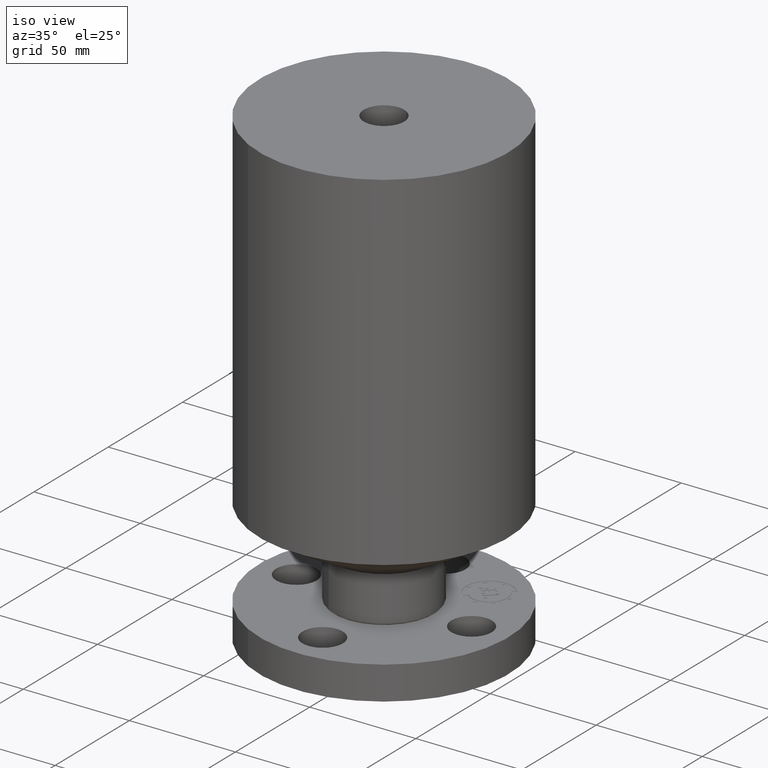
[diagram: clean part render]
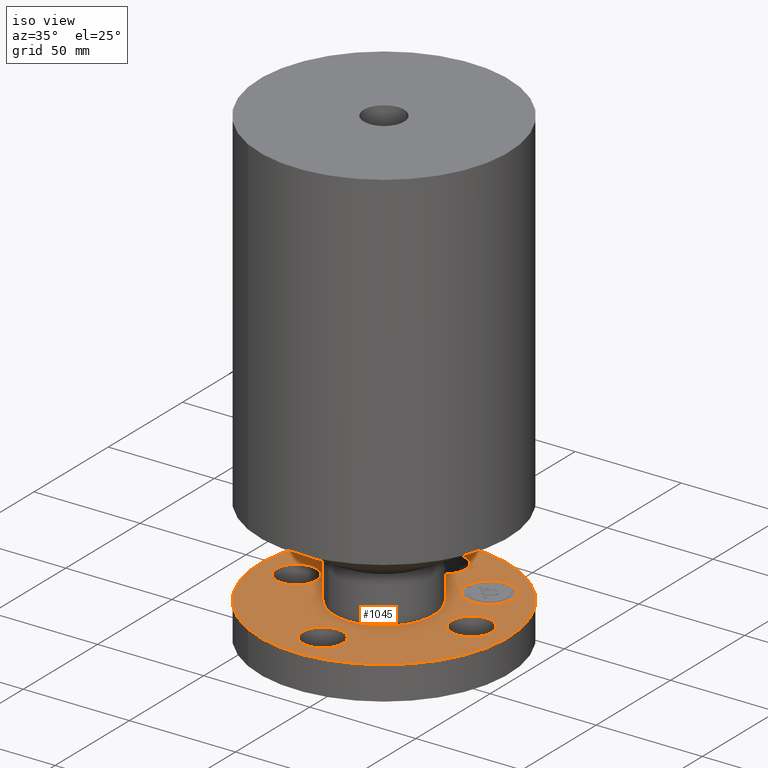
[diagram: same view with one face highlighted and labeled with its STEP entity id]
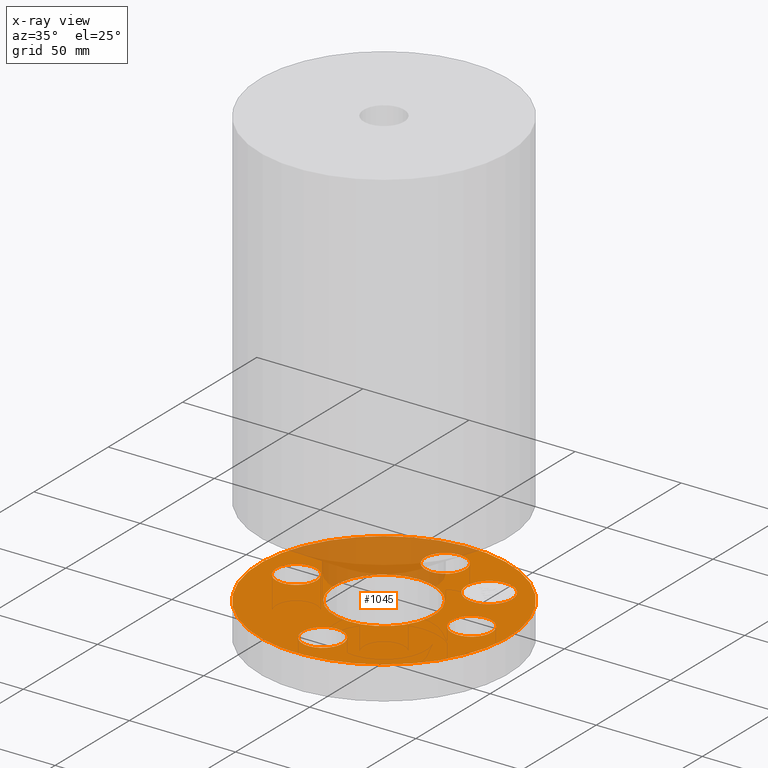
[diagram: x-ray of the same camera — body ghosted, the highlighted face saturated]
A machine part, iso view. The second image highlights one B-rep face of the part: STEP entity #1045.
The next image is the same camera in x-ray: the body ghosted, the highlighted face saturated — about 24% of this face is hidden behind the body in this view.
In plain terms, the highlighted planar face has unit normal (0, 0, -1).
Its self-contained STEP definition (entity closure, byte-faithful):
#65=AXIS2_PLACEMENT_3D('Circle Axis2P3D',#63,#64,$) ;
#250=AXIS2_PLACEMENT_3D('Circle Axis2P3D',#248,#249,$) ;
#269=AXIS2_PLACEMENT_3D('Circle Axis2P3D',#267,#268,$) ;
#286=AXIS2_PLACEMENT_3D('Circle Axis2P3D',#284,#285,$) ;
#321=AXIS2_PLACEMENT_3D('Circle Axis2P3D',#319,#320,$) ;
#855=AXIS2_PLACEMENT_3D('Circle Axis2P3D',#853,#854,$) ;
#887=AXIS2_PLACEMENT_3D('Circle Axis2P3D',#885,#886,$) ;
#899=AXIS2_PLACEMENT_3D('Circle Axis2P3D',#897,#898,$) ;
#931=AXIS2_PLACEMENT_3D('Circle Axis2P3D',#929,#930,$) ;
#943=AXIS2_PLACEMENT_3D('Circle Axis2P3D',#941,#942,$) ;
#975=AXIS2_PLACEMENT_3D('Circle Axis2P3D',#973,#974,$) ;
#987=AXIS2_PLACEMENT_3D('Circle Axis2P3D',#985,#986,$) ;
#1001=AXIS2_PLACEMENT_3D('Plane Axis2P3D',#998,#999,#1000) ;
#1029=AXIS2_PLACEMENT_3D('Circle Axis2P3D',#1027,#1028,$) ;
#1038=AXIS2_PLACEMENT_3D('Circle Axis2P3D',#1036,#1037,$) ;
#44=CARTESIAN_POINT('Vertex',(1.95409346072,0.179784576977,0.620000000002)) ;
#60=CARTESIAN_POINT('Vertex',(1.2959065393,-0.179784576977,0.620000000002)) ;
#63=CARTESIAN_POINT('Axis2P3D Location',(1.62500000001,0.,0.620000000002)) ;
#245=CARTESIAN_POINT('Vertex',(-1.10747299418,-2.02721571797,0.620000000002)) ;
#248=CARTESIAN_POINT('Axis2P3D Location',(0.,0.,0.620000000002)) ;
#252=CARTESIAN_POINT('Vertex',(1.10747299418,2.02721571797,0.620000000002)) ;
#267=CARTESIAN_POINT('Axis2P3D Location',(0.,0.,0.620000000002)) ;
#284=CARTESIAN_POINT('Axis2P3D Location',(0.,0.,0.620000000002)) ;
#288=CARTESIAN_POINT('Vertex',(0.443468623211,0.811763869752,0.620000000002)) ;
#290=CARTESIAN_POINT('Vertex',(-0.443468623211,-0.811763869752,0.620000000002)) ;
#319=CARTESIAN_POINT('Axis2P3D Location',(0.,0.,0.620000000002)) ;
#853=CARTESIAN_POINT('Axis2P3D Location',(1.62500000001,0.,0.620000000002)) ;
#875=CARTESIAN_POINT('Vertex',(0.179784576977,-1.95409346072,0.620000000002)) ;
#882=CARTESIAN_POINT('Vertex',(-0.179784576977,-1.2959065393,0.620000000002)) ;
#885=CARTESIAN_POINT('Axis2P3D Location',(-1.8023868212E-016,-1.62500000001,0.620000000002)) ;
#897=CARTESIAN_POINT('Axis2P3D Location',(-1.8023868212E-016,-1.62500000001,0.620000000002)) ;
#919=CARTESIAN_POINT('Vertex',(-1.95409346072,-0.179784576977,0.620000000002)) ;
#926=CARTESIAN_POINT('Vertex',(-1.2959065393,0.179784576977,0.620000000002)) ;
#929=CARTESIAN_POINT('Axis2P3D Location',(-1.62500000001,-1.99005104862E-016,0.620000000002)) ;
#941=CARTESIAN_POINT('Axis2P3D Location',(-1.62500000001,-1.99005104862E-016,0.620000000002)) ;
#963=CARTESIAN_POINT('Vertex',(-0.179784576977,1.95409346072,0.620000000002)) ;
#970=CARTESIAN_POINT('Vertex',(0.179784576977,1.2959065393,0.620000000002)) ;
#973=CARTESIAN_POINT('Axis2P3D Location',(-2.98507657293E-016,1.62500000001,0.620000000002)) ;
#985=CARTESIAN_POINT('Axis2P3D Location',(-2.98507657293E-016,1.62500000001,0.620000000002)) ;
#998=CARTESIAN_POINT('Axis2P3D Location',(0.,2.31000000001,0.620000000002)) ;
#1027=CARTESIAN_POINT('Axis2P3D Location',(1.14904851943,1.14904851943,0.620000000002)) ;
#1031=CARTESIAN_POINT('Vertex',(1.44956889843,0.848528140432,0.620000000002)) ;
#1033=CARTESIAN_POINT('Vertex',(0.848528140432,1.44956889843,0.620000000002)) ;
#1036=CARTESIAN_POINT('Axis2P3D Location',(1.14904851943,1.14904851943,0.620000000002)) ;
#64=DIRECTION('Axis2P3D Direction',(0.,-0.,0.0393700787402)) ;
#249=DIRECTION('Axis2P3D Direction',(0.,0.,-0.0393700787402)) ;
#268=DIRECTION('Axis2P3D Direction',(0.,0.,-0.0393700787402)) ;
#285=DIRECTION('Axis2P3D Direction',(0.,0.,-0.0393700787402)) ;
#320=DIRECTION('Axis2P3D Direction',(0.,0.,-0.0393700787402)) ;
#854=DIRECTION('Axis2P3D Direction',(0.,-0.,0.0393700787402)) ;
#886=DIRECTION('Axis2P3D Direction',(-0.,0.,0.0393700787402)) ;
#898=DIRECTION('Axis2P3D Direction',(-0.,0.,0.0393700787402)) ;
#930=DIRECTION('Axis2P3D Direction',(0.,0.,0.0393700787402)) ;
#942=DIRECTION('Axis2P3D Direction',(0.,0.,0.0393700787402)) ;
#974=DIRECTION('Axis2P3D Direction',(0.,0.,0.0393700787402)) ;
#986=DIRECTION('Axis2P3D Direction',(0.,0.,0.0393700787402)) ;
#999=DIRECTION('Axis2P3D Direction',(0.,0.,-0.0393700787402)) ;
#1000=DIRECTION('Axis2P3D XDirection',(0.0393700787402,0.,0.)) ;
#1028=DIRECTION('Axis2P3D Direction',(0.,0.,-0.0393700787402)) ;
#1037=DIRECTION('Axis2P3D Direction',(0.,0.,-0.0393700787402)) ;
#1004=ORIENTED_EDGE('',*,*,#271,.F.) ;
#1005=ORIENTED_EDGE('',*,*,#254,.F.) ;
#1008=ORIENTED_EDGE('',*,*,#67,.T.) ;
#1009=ORIENTED_EDGE('',*,*,#857,.T.) ;
#1012=ORIENTED_EDGE('',*,*,#323,.T.) ;
#1013=ORIENTED_EDGE('',*,*,#292,.T.) ;
#1016=ORIENTED_EDGE('',*,*,#901,.T.) ;
#1017=ORIENTED_EDGE('',*,*,#889,.T.) ;
#1020=ORIENTED_EDGE('',*,*,#945,.T.) ;
#1021=ORIENTED_EDGE('',*,*,#933,.T.) ;
#1024=ORIENTED_EDGE('',*,*,#989,.T.) ;
#1025=ORIENTED_EDGE('',*,*,#977,.T.) ;
#1042=ORIENTED_EDGE('',*,*,#1035,.F.) ;
#1043=ORIENTED_EDGE('',*,*,#1040,.F.) ;
#1010=FACE_BOUND('',#1007,.T.) ;
#1014=FACE_BOUND('',#1011,.T.) ;
#1018=FACE_BOUND('',#1015,.T.) ;
#1022=FACE_BOUND('',#1019,.T.) ;
#1026=FACE_BOUND('',#1023,.T.) ;
#1044=FACE_BOUND('',#1041,.T.) ;
#1045=ADVANCED_FACE('PartBody',(#1006,#1010,#1014,#1018,#1022,#1026,#1044),#1002,.F.) ;
#66=CIRCLE('generated circle',#65,0.375000000001) ;
#251=CIRCLE('generated circle',#250,2.31000000001) ;
#270=CIRCLE('generated circle',#269,2.31000000001) ;
#287=CIRCLE('generated circle',#286,0.925000000004) ;
#322=CIRCLE('generated circle',#321,0.925000000004) ;
#856=CIRCLE('generated circle',#855,0.375000000001) ;
#888=CIRCLE('generated circle',#887,0.375000000001) ;
#900=CIRCLE('generated circle',#899,0.375000000001) ;
#932=CIRCLE('generated circle',#931,0.375000000002) ;
#944=CIRCLE('generated circle',#943,0.375000000002) ;
#976=CIRCLE('generated circle',#975,0.375000000001) ;
#988=CIRCLE('generated circle',#987,0.375000000001) ;
#1030=CIRCLE('generated circle',#1029,0.424999995752) ;
#1039=CIRCLE('generated circle',#1038,0.424999995752) ;
#67=EDGE_CURVE('',#45,#61,#66,.F.) ;
#254=EDGE_CURVE('',#246,#253,#251,.T.) ;
#271=EDGE_CURVE('',#253,#246,#270,.T.) ;
#292=EDGE_CURVE('',#289,#291,#287,.T.) ;
#323=EDGE_CURVE('',#291,#289,#322,.T.) ;
#857=EDGE_CURVE('',#61,#45,#856,.F.) ;
#889=EDGE_CURVE('',#876,#883,#888,.F.) ;
#901=EDGE_CURVE('',#883,#876,#900,.F.) ;
#933=EDGE_CURVE('',#920,#927,#932,.F.) ;
#945=EDGE_CURVE('',#927,#920,#944,.F.) ;
#977=EDGE_CURVE('',#964,#971,#976,.F.) ;
#989=EDGE_CURVE('',#971,#964,#988,.F.) ;
#1035=EDGE_CURVE('',#1032,#1034,#1030,.F.) ;
#1040=EDGE_CURVE('',#1034,#1032,#1039,.F.) ;
#1003=EDGE_LOOP('',(#1004,#1005)) ;
#1007=EDGE_LOOP('',(#1008,#1009)) ;
#1011=EDGE_LOOP('',(#1012,#1013)) ;
#1015=EDGE_LOOP('',(#1016,#1017)) ;
#1019=EDGE_LOOP('',(#1020,#1021)) ;
#1023=EDGE_LOOP('',(#1024,#1025)) ;
#1041=EDGE_LOOP('',(#1042,#1043)) ;
#1006=FACE_OUTER_BOUND('',#1003,.T.) ;
#1002=PLANE('',#1001) ;
#45=VERTEX_POINT('',#44) ;
#61=VERTEX_POINT('',#60) ;
#246=VERTEX_POINT('',#245) ;
#253=VERTEX_POINT('',#252) ;
#289=VERTEX_POINT('',#288) ;
#291=VERTEX_POINT('',#290) ;
#876=VERTEX_POINT('',#875) ;
#883=VERTEX_POINT('',#882) ;
#920=VERTEX_POINT('',#919) ;
#927=VERTEX_POINT('',#926) ;
#964=VERTEX_POINT('',#963) ;
#971=VERTEX_POINT('',#970) ;
#1032=VERTEX_POINT('',#1031) ;
#1034=VERTEX_POINT('',#1033) ;